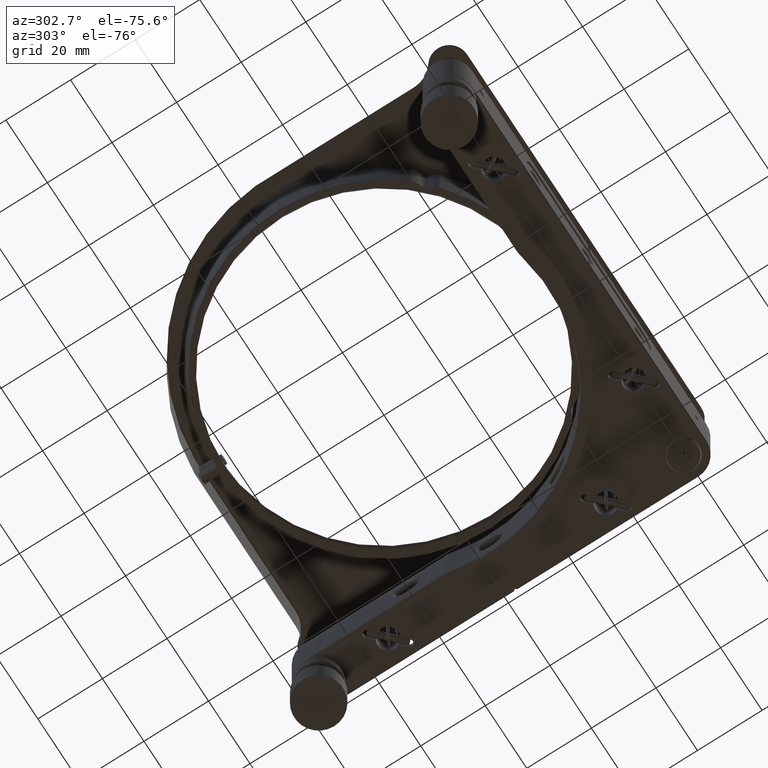
[diagram: clean part render]
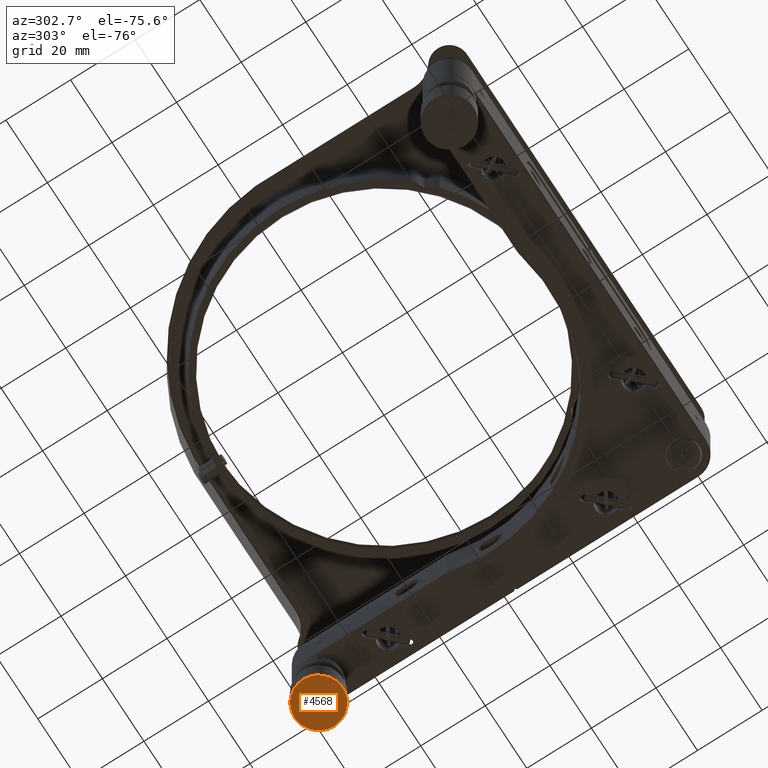
[diagram: same view with one face highlighted and labeled with its STEP entity id]
A machine part, auxiliary view. The second image highlights one B-rep face of the part: STEP entity #4568.
In plain terms, the highlighted planar face has unit normal (-0, -0, -1).
Its self-contained STEP definition (entity closure, byte-faithful):
#1089 = EDGE_CURVE ( 'NONE', #8382, #8382, #7085, .T. ) ;
#2674 = EDGE_LOOP ( 'NONE', ( #9117 ) ) ;
#4568 = ADVANCED_FACE ( 'NONE', ( #8208 ), #5153, .T. ) ;
#4650 = AXIS2_PLACEMENT_3D ( 'NONE', #7451, #10942, #15864 ) ;
#5153 = PLANE ( 'NONE',  #9541 ) ;
#7085 = CIRCLE ( 'NONE', #4650, 7.499999999999930722 ) ;
#7451 = CARTESIAN_POINT ( 'NONE',  ( 56.50000000000043343, 56.49999999999968736, -30.70814575050761874 ) ) ;
#8208 = FACE_OUTER_BOUND ( 'NONE', #2674, .T. ) ;
#8382 = VERTEX_POINT ( 'NONE', #18556 ) ;
#9117 = ORIENTED_EDGE ( 'NONE', *, *, #1089, .T. ) ;
#9541 = AXIS2_PLACEMENT_3D ( 'NONE', #21546, #11813, #20233 ) ;
#10942 = DIRECTION ( 'NONE',  ( -1.124987220396268767E-16, -3.171434466609468042E-17, -1.000000000000000000 ) ) ;
#11813 = DIRECTION ( 'NONE',  ( -1.124987220396268767E-16, -3.171434466609468042E-17, -1.000000000000000000 ) ) ;
#15864 = DIRECTION ( 'NONE',  ( -1.000000000000000000, 0.000000000000000000, 0.000000000000000000 ) ) ;
#18556 = CARTESIAN_POINT ( 'NONE',  ( 49.00000000000050449, 56.49999999999968736, -30.70814575050761874 ) ) ;
#20233 = DIRECTION ( 'NONE',  ( -1.000000000000000000, 0.000000000000000000, 1.124987220396268767E-16 ) ) ;
#21546 = CARTESIAN_POINT ( 'NONE',  ( 56.50000000000043343, 56.49999999999968736, -30.70814575050761874 ) ) ;